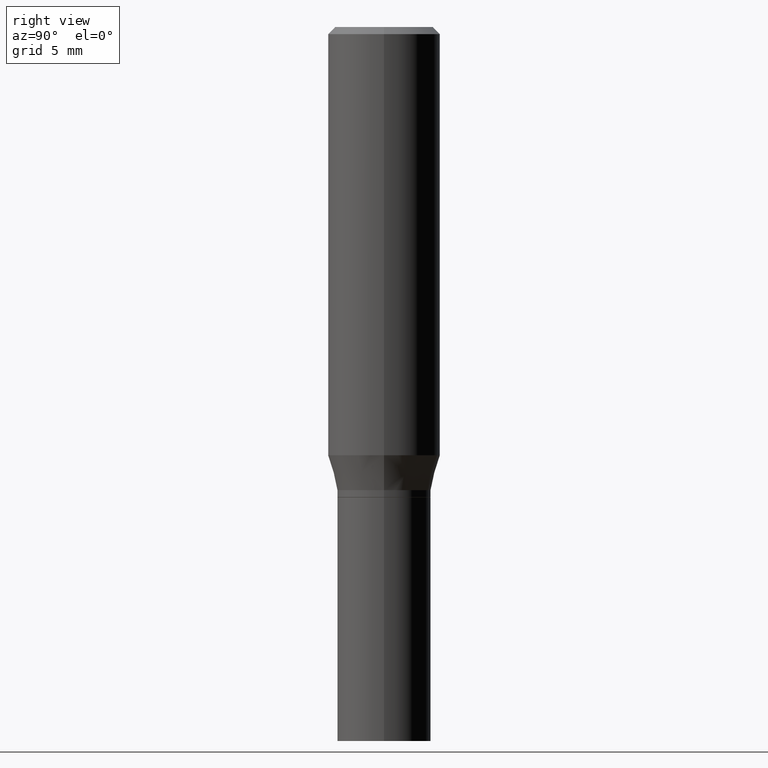
[diagram: clean part render]
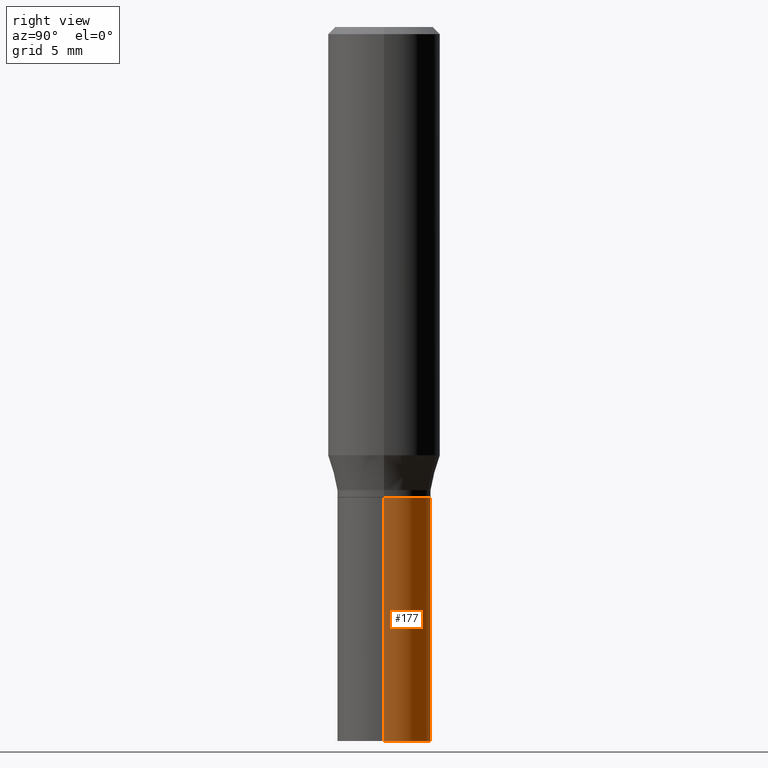
[diagram: same view with one face highlighted and labeled with its STEP entity id]
A machine part, right view. The second image highlights one B-rep face of the part: STEP entity #177.
In plain terms, the highlighted cylindrical surface (partial cylindrical patch) has radius 2.5006 mm, axis along (-0, 0, 1).
Its self-contained STEP definition (entity closure, byte-faithful):
#7 = LINE ( 'NONE', #446, #15 ) ;
#15 = VECTOR ( 'NONE', #409, 39.37007874015748143 ) ;
#24 = AXIS2_PLACEMENT_3D ( 'NONE', #232, #45, #89 ) ;
#27 = DIRECTION ( 'NONE',  ( -2.445468806185136877E-29, 3.491481338843145188E-15, 1.000000000000000000 ) ) ;
#45 = DIRECTION ( 'NONE',  ( -2.445468806185136597E-29, 3.491481338843145583E-15, 1.000000000000000000 ) ) ;
#51 = FACE_OUTER_BOUND ( 'NONE', #192, .T. ) ;
#66 = DIRECTION ( 'NONE',  ( -2.445468806185136597E-29, 3.491481338843145583E-15, 1.000000000000000000 ) ) ;
#79 = EDGE_CURVE ( 'NONE', #456, #343, #122, .T. ) ;
#89 = DIRECTION ( 'NONE',  ( 1.000000000000000000, -6.982962677686266711E-15, 4.876176775795936353E-29 ) ) ;
#99 = ORIENTED_EDGE ( 'NONE', *, *, #307, .F. ) ;
#112 = EDGE_CURVE ( 'NONE', #176, #343, #7, .T. ) ;
#122 = CIRCLE ( 'NONE', #321, 0.09844999999999999585 ) ;
#125 = CARTESIAN_POINT ( 'NONE',  ( 2.416612274272152255E-29, -3.450281859044796915E-15, -0.9882000000000000783 ) ) ;
#150 = CARTESIAN_POINT ( 'NONE',  ( 0.09844999999999999585, -4.137754534663009475E-15, -0.9882000000000000783 ) ) ;
#157 = DIRECTION ( 'NONE',  ( -2.445468806185136597E-29, 3.491481338843145583E-15, 1.000000000000000000 ) ) ;
#176 = VERTEX_POINT ( 'NONE', #265 ) ;
#177 = ADVANCED_FACE ( 'NONE', ( #51 ), #187, .T. ) ;
#187 = CYLINDRICAL_SURFACE ( 'NONE', #24, 0.09844999999999999585 ) ;
#192 = EDGE_LOOP ( 'NONE', ( #387, #310, #346, #99 ) ) ;
#201 = CARTESIAN_POINT ( 'NONE',  ( 0.09844999999999999585, -6.874726756182129545E-16, 4.800596035771099214E-30 ) ) ;
#232 = CARTESIAN_POINT ( 'NONE',  ( 0.000000000000000000, 0.000000000000000000, 0.000000000000000000 ) ) ;
#244 = LINE ( 'NONE', #201, #246 ) ;
#246 = VECTOR ( 'NONE', #27, 39.37007874015748143 ) ;
#265 = CARTESIAN_POINT ( 'NONE',  ( -0.09844999999999999585, -3.644222610298939041E-15, -1.500000000000000222 ) ) ;
#304 = DIRECTION ( 'NONE',  ( 1.000000000000000000, -6.982962677686265922E-15, 0.000000000000000000 ) ) ;
#307 = EDGE_CURVE ( 'NONE', #345, #456, #244, .T. ) ;
#310 = ORIENTED_EDGE ( 'NONE', *, *, #112, .T. ) ;
#321 = AXIS2_PLACEMENT_3D ( 'NONE', #125, #157, #403 ) ;
#329 = AXIS2_PLACEMENT_3D ( 'NONE', #341, #66, #304 ) ;
#341 = CARTESIAN_POINT ( 'NONE',  ( 3.668203209277704895E-29, -5.237222008264718177E-15, -1.500000000000000222 ) ) ;
#343 = VERTEX_POINT ( 'NONE', #413 ) ;
#345 = VERTEX_POINT ( 'NONE', #379 ) ;
#346 = ORIENTED_EDGE ( 'NONE', *, *, #79, .F. ) ;
#365 = EDGE_CURVE ( 'NONE', #345, #176, #445, .T. ) ;
#379 = CARTESIAN_POINT ( 'NONE',  ( 0.09844999999999999585, -5.924694683882931526E-15, -1.500000000000000222 ) ) ;
#387 = ORIENTED_EDGE ( 'NONE', *, *, #365, .T. ) ;
#403 = DIRECTION ( 'NONE',  ( 1.000000000000000000, -6.982962677686265922E-15, 0.000000000000000000 ) ) ;
#409 = DIRECTION ( 'NONE',  ( -2.445468806185136877E-29, 3.491481338843145188E-15, 1.000000000000000000 ) ) ;
#413 = CARTESIAN_POINT ( 'NONE',  ( -0.09844999999999999585, -3.644222610298939041E-15, -0.9882000000000000783 ) ) ;
#445 = CIRCLE ( 'NONE', #329, 0.09844999999999999585 ) ;
#446 = CARTESIAN_POINT ( 'NONE',  ( -0.09844999999999999585, 6.995293233558186035E-16, -4.842691596355954042E-30 ) ) ;
#456 = VERTEX_POINT ( 'NONE', #150 ) ;